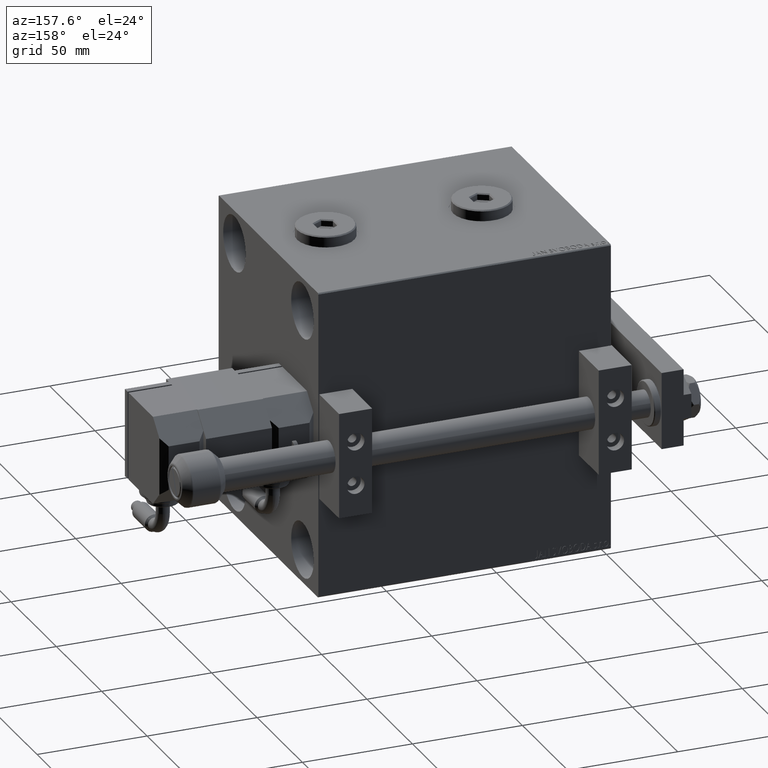
[diagram: clean part render]
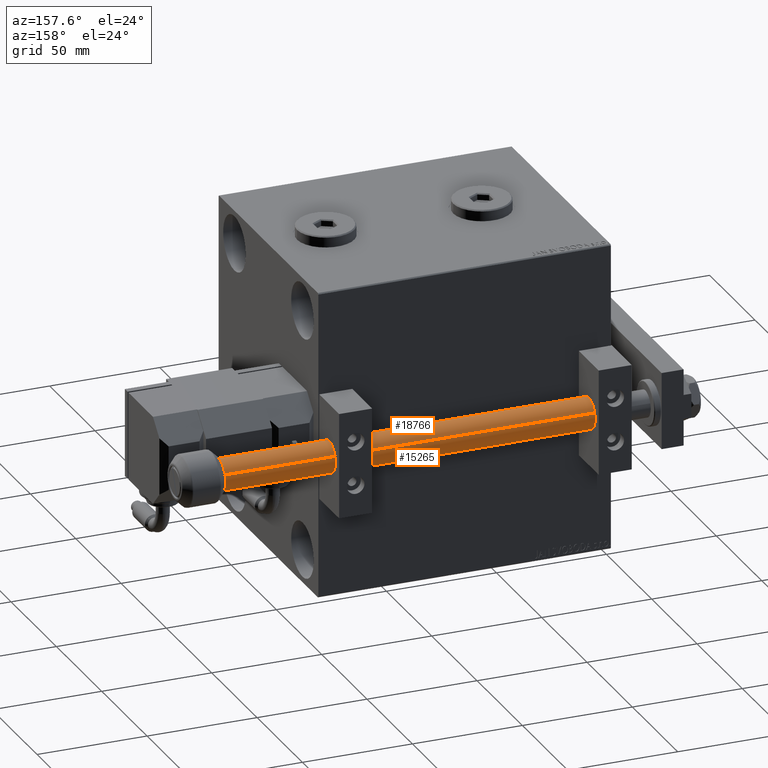
[diagram: same view with one multi-face feature highlighted, each face labeled with its STEP entity id]
A machine part, auxiliary view. The highlighted faces form ONE feature: a constant-radius fillet chain: 2 tangent blend faces with common blend radius 7 mm. The faces share edges in the B-rep.
Their STEP definitions:
[1] entity #18766 (Cylinder):
#48 = CARTESIAN_POINT ( 'NONE',  ( 7.000000000000000000, 8.572527594031471218E-16, 203.0000000000000000 ) ) ;
#1221 = EDGE_CURVE ( 'NONE', #47152, #29017, #23927, .T. ) ;
#1672 = CIRCLE ( 'NONE', #33901, 7.000000000000000000 ) ;
#2905 = DIRECTION ( 'NONE',  ( 1.000000000000000000, 0.000000000000000000, 0.000000000000000000 ) ) ;
#2947 = DIRECTION ( 'NONE',  ( 1.000000000000000000, 0.000000000000000000, 0.000000000000000000 ) ) ;
#3449 = ORIENTED_EDGE ( 'NONE', *, *, #31708, .T. ) ;
#3762 = DIRECTION ( 'NONE',  ( -0.000000000000000000, -0.000000000000000000, -1.000000000000000000 ) ) ;
#3946 = CARTESIAN_POINT ( 'NONE',  ( 0.000000000000000000, 0.000000000000000000, 2.000000000000057288 ) ) ;
#4078 = CARTESIAN_POINT ( 'NONE',  ( -7.000000000000000000, 0.000000000000000000, 203.0000000000000000 ) ) ;
#5737 = ORIENTED_EDGE ( 'NONE', *, *, #42110, .T. ) ;
#7079 = AXIS2_PLACEMENT_3D ( 'NONE', #27859, #7422, #2905 ) ;
#7422 = DIRECTION ( 'NONE',  ( 0.000000000000000000, 0.000000000000000000, -1.000000000000000000 ) ) ;
#8379 = ORIENTED_EDGE ( 'NONE', *, *, #28731, .T. ) ;
#8457 = DIRECTION ( 'NONE',  ( 1.000000000000000000, 0.000000000000000000, 0.000000000000000000 ) ) ;
#10540 = FACE_OUTER_BOUND ( 'NONE', #46103, .T. ) ;
#12553 = DIRECTION ( 'NONE',  ( -0.000000000000000000, -0.000000000000000000, -1.000000000000000000 ) ) ;
#13965 = DIRECTION ( 'NONE',  ( 0.000000000000000000, 0.000000000000000000, -1.000000000000000000 ) ) ;
#16006 = LINE ( 'NONE', #4078, #32597 ) ;
#17765 = VERTEX_POINT ( 'NONE', #44793 ) ;
#18563 = VERTEX_POINT ( 'NONE', #20207 ) ;
#18729 = CARTESIAN_POINT ( 'NONE',  ( 0.000000000000000000, 0.000000000000000000, 202.0000000000001137 ) ) ;
#18766 = ADVANCED_FACE ( 'NONE', ( #10540 ), #26741, .T. ) ;
#20132 = DIRECTION ( 'NONE',  ( -0.000000000000000000, -0.000000000000000000, 1.000000000000000000 ) ) ;
#20207 = CARTESIAN_POINT ( 'NONE',  ( -0.4999999999999975020, -6.982120021884583139, 202.0000000000000000 ) ) ;
#22113 = CIRCLE ( 'NONE', #36543, 7.000000000000000000 ) ;
#22731 = VERTEX_POINT ( 'NONE', #38298 ) ;
#23927 = LINE ( 'NONE', #48, #29824 ) ;
#24049 = AXIS2_PLACEMENT_3D ( 'NONE', #51565, #31100, #2947 ) ;
#24169 = CIRCLE ( 'NONE', #24049, 7.000000000000000000 ) ;
#26741 = CYLINDRICAL_SURFACE ( 'NONE', #31181, 7.000000000000000000 ) ;
#27859 = CARTESIAN_POINT ( 'NONE',  ( 0.000000000000000000, 0.000000000000000000, 202.0000000000001137 ) ) ;
#28731 = EDGE_CURVE ( 'NONE', #47152, #29569, #1672, .T. ) ;
#29017 = VERTEX_POINT ( 'NONE', #31894 ) ;
#29569 = VERTEX_POINT ( 'NONE', #32538 ) ;
#29824 = VECTOR ( 'NONE', #3762, 1000.000000000000000 ) ;
#30816 = CIRCLE ( 'NONE', #7079, 7.000000000000000000 ) ;
#30998 = DIRECTION ( 'NONE',  ( -1.000000000000000000, 0.000000000000000000, 0.000000000000000000 ) ) ;
#31100 = DIRECTION ( 'NONE',  ( 0.000000000000000000, 0.000000000000000000, -1.000000000000000000 ) ) ;
#31181 = AXIS2_PLACEMENT_3D ( 'NONE', #46931, #47457, #30998 ) ;
#31708 = EDGE_CURVE ( 'NONE', #22731, #29017, #22113, .T. ) ;
#31894 = CARTESIAN_POINT ( 'NONE',  ( 7.000000000000000000, 8.572527594031471218E-16, 2.000000000000057288 ) ) ;
#32538 = CARTESIAN_POINT ( 'NONE',  ( 0.5000000000000001110, -6.982120021884583139, 202.0000000000000000 ) ) ;
#32597 = VECTOR ( 'NONE', #12553, 1000.000000000000000 ) ;
#33213 = ORIENTED_EDGE ( 'NONE', *, *, #1221, .F. ) ;
#33901 = AXIS2_PLACEMENT_3D ( 'NONE', #18729, #13965, #46906 ) ;
#35317 = ORIENTED_EDGE ( 'NONE', *, *, #43976, .T. ) ;
#36543 = AXIS2_PLACEMENT_3D ( 'NONE', #3946, #20132, #8457 ) ;
#37832 = CARTESIAN_POINT ( 'NONE',  ( 7.000000000000000000, 8.572527594031471218E-16, 202.0000000000001137 ) ) ;
#37884 = EDGE_CURVE ( 'NONE', #18563, #17765, #30816, .T. ) ;
#38298 = CARTESIAN_POINT ( 'NONE',  ( -7.000000000000000000, 0.000000000000000000, 2.000000000000057288 ) ) ;
#42110 = EDGE_CURVE ( 'NONE', #29569, #18563, #24169, .T. ) ;
#43976 = EDGE_CURVE ( 'NONE', #17765, #22731, #16006, .T. ) ;
#44793 = CARTESIAN_POINT ( 'NONE',  ( -7.000000000000000000, 0.000000000000000000, 202.0000000000001137 ) ) ;
#46103 = EDGE_LOOP ( 'NONE', ( #33213, #8379, #5737, #51473, #35317, #3449 ) ) ;
#46906 = DIRECTION ( 'NONE',  ( 1.000000000000000000, 0.000000000000000000, 0.000000000000000000 ) ) ;
#46931 = CARTESIAN_POINT ( 'NONE',  ( 0.000000000000000000, 0.000000000000000000, 203.0000000000000000 ) ) ;
#47152 = VERTEX_POINT ( 'NONE', #37832 ) ;
#47457 = DIRECTION ( 'NONE',  ( -0.000000000000000000, -0.000000000000000000, -1.000000000000000000 ) ) ;
#51473 = ORIENTED_EDGE ( 'NONE', *, *, #37884, .T. ) ;
#51565 = CARTESIAN_POINT ( 'NONE',  ( 0.000000000000000000, 0.000000000000000000, 202.0000000000001137 ) ) ;
[2] entity #15265 (Cylinder):
#48 = CARTESIAN_POINT ( 'NONE',  ( 7.000000000000000000, 8.572527594031471218E-16, 203.0000000000000000 ) ) ;
#306 = CARTESIAN_POINT ( 'NONE',  ( 0.000000000000000000, 0.000000000000000000, 202.0000000000001137 ) ) ;
#668 = DIRECTION ( 'NONE',  ( 1.000000000000000000, 0.000000000000000000, 0.000000000000000000 ) ) ;
#1046 = VERTEX_POINT ( 'NONE', #41514 ) ;
#1205 = DIRECTION ( 'NONE',  ( -0.000000000000000000, -0.000000000000000000, -1.000000000000000000 ) ) ;
#1221 = EDGE_CURVE ( 'NONE', #47152, #29017, #23927, .T. ) ;
#1623 = DIRECTION ( 'NONE',  ( 0.000000000000000000, 0.000000000000000000, -1.000000000000000000 ) ) ;
#3762 = DIRECTION ( 'NONE',  ( -0.000000000000000000, -0.000000000000000000, -1.000000000000000000 ) ) ;
#3986 = AXIS2_PLACEMENT_3D ( 'NONE', #306, #36425, #15693 ) ;
#4078 = CARTESIAN_POINT ( 'NONE',  ( -7.000000000000000000, 0.000000000000000000, 203.0000000000000000 ) ) ;
#5454 = FACE_OUTER_BOUND ( 'NONE', #38325, .T. ) ;
#5617 = AXIS2_PLACEMENT_3D ( 'NONE', #25358, #1205, #25092 ) ;
#7055 = CARTESIAN_POINT ( 'NONE',  ( -0.4999999999999992784, 6.982120021884583139, 202.0000000000000000 ) ) ;
#7347 = VERTEX_POINT ( 'NONE', #7055 ) ;
#9063 = ORIENTED_EDGE ( 'NONE', *, *, #40487, .T. ) ;
#11408 = ORIENTED_EDGE ( 'NONE', *, *, #43976, .F. ) ;
#11760 = DIRECTION ( 'NONE',  ( 0.000000000000000000, 0.000000000000000000, -1.000000000000000000 ) ) ;
#12553 = DIRECTION ( 'NONE',  ( -0.000000000000000000, -0.000000000000000000, -1.000000000000000000 ) ) ;
#14338 = ORIENTED_EDGE ( 'NONE', *, *, #29858, .T. ) ;
#14508 = ORIENTED_EDGE ( 'NONE', *, *, #30684, .T. ) ;
#15265 = ADVANCED_FACE ( 'NONE', ( #5454 ), #45562, .T. ) ;
#15693 = DIRECTION ( 'NONE',  ( 1.000000000000000000, -1.421085471520200372E-14, 0.000000000000000000 ) ) ;
#16006 = LINE ( 'NONE', #4078, #32597 ) ;
#17765 = VERTEX_POINT ( 'NONE', #44793 ) ;
#18597 = EDGE_CURVE ( 'NONE', #7347, #1046, #26878, .T. ) ;
#21785 = CARTESIAN_POINT ( 'NONE',  ( 0.000000000000000000, 0.000000000000000000, 202.0000000000001137 ) ) ;
#22731 = VERTEX_POINT ( 'NONE', #38298 ) ;
#23285 = AXIS2_PLACEMENT_3D ( 'NONE', #21785, #1623, #41994 ) ;
#23927 = LINE ( 'NONE', #48, #29824 ) ;
#25092 = DIRECTION ( 'NONE',  ( -1.000000000000000000, 0.000000000000000000, 0.000000000000000000 ) ) ;
#25358 = CARTESIAN_POINT ( 'NONE',  ( 0.000000000000000000, 0.000000000000000000, 203.0000000000000000 ) ) ;
#26878 = CIRCLE ( 'NONE', #3986, 7.000000000000000000 ) ;
#29017 = VERTEX_POINT ( 'NONE', #31894 ) ;
#29363 = ORIENTED_EDGE ( 'NONE', *, *, #18597, .T. ) ;
#29824 = VECTOR ( 'NONE', #3762, 1000.000000000000000 ) ;
#29858 = EDGE_CURVE ( 'NONE', #1046, #47152, #31399, .T. ) ;
#30684 = EDGE_CURVE ( 'NONE', #29017, #22731, #39045, .T. ) ;
#31177 = DIRECTION ( 'NONE',  ( 1.000000000000000000, 0.000000000000000000, 0.000000000000000000 ) ) ;
#31399 = CIRCLE ( 'NONE', #49207, 7.000000000000000000 ) ;
#31437 = AXIS2_PLACEMENT_3D ( 'NONE', #45022, #41293, #668 ) ;
#31894 = CARTESIAN_POINT ( 'NONE',  ( 7.000000000000000000, 8.572527594031471218E-16, 2.000000000000057288 ) ) ;
#32597 = VECTOR ( 'NONE', #12553, 1000.000000000000000 ) ;
#33254 = ORIENTED_EDGE ( 'NONE', *, *, #1221, .T. ) ;
#36425 = DIRECTION ( 'NONE',  ( 0.000000000000000000, 0.000000000000000000, -1.000000000000000000 ) ) ;
#37832 = CARTESIAN_POINT ( 'NONE',  ( 7.000000000000000000, 8.572527594031471218E-16, 202.0000000000001137 ) ) ;
#38298 = CARTESIAN_POINT ( 'NONE',  ( -7.000000000000000000, 0.000000000000000000, 2.000000000000057288 ) ) ;
#38325 = EDGE_LOOP ( 'NONE', ( #14338, #33254, #14508, #11408, #9063, #29363 ) ) ;
#39045 = CIRCLE ( 'NONE', #31437, 7.000000000000000000 ) ;
#40487 = EDGE_CURVE ( 'NONE', #17765, #7347, #41083, .T. ) ;
#41083 = CIRCLE ( 'NONE', #23285, 7.000000000000000000 ) ;
#41293 = DIRECTION ( 'NONE',  ( -0.000000000000000000, -0.000000000000000000, 1.000000000000000000 ) ) ;
#41514 = CARTESIAN_POINT ( 'NONE',  ( 0.4999999999999921174, 6.982120021884471228, 202.0000000000001137 ) ) ;
#41994 = DIRECTION ( 'NONE',  ( 1.000000000000000000, 8.881784197001252323E-16, 0.000000000000000000 ) ) ;
#43976 = EDGE_CURVE ( 'NONE', #17765, #22731, #16006, .T. ) ;
#44793 = CARTESIAN_POINT ( 'NONE',  ( -7.000000000000000000, 0.000000000000000000, 202.0000000000001137 ) ) ;
#45022 = CARTESIAN_POINT ( 'NONE',  ( 0.000000000000000000, 0.000000000000000000, 2.000000000000057288 ) ) ;
#45562 = CYLINDRICAL_SURFACE ( 'NONE', #5617, 7.000000000000000000 ) ;
#47152 = VERTEX_POINT ( 'NONE', #37832 ) ;
#47631 = CARTESIAN_POINT ( 'NONE',  ( 0.000000000000000000, 0.000000000000000000, 202.0000000000001137 ) ) ;
#49207 = AXIS2_PLACEMENT_3D ( 'NONE', #47631, #11760, #31177 ) ;